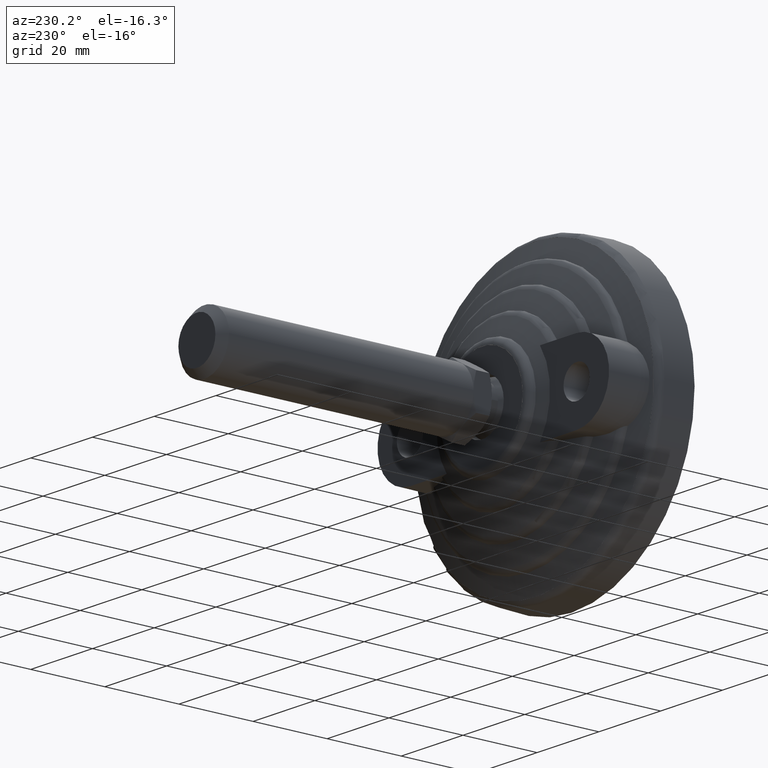
[diagram: clean part render]
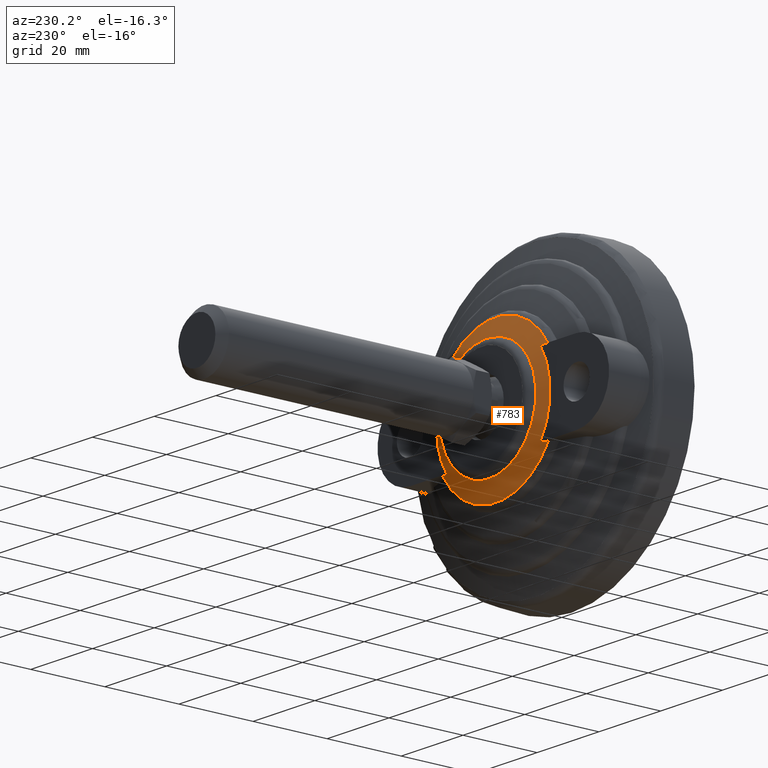
[diagram: same view with one face highlighted and labeled with its STEP entity id]
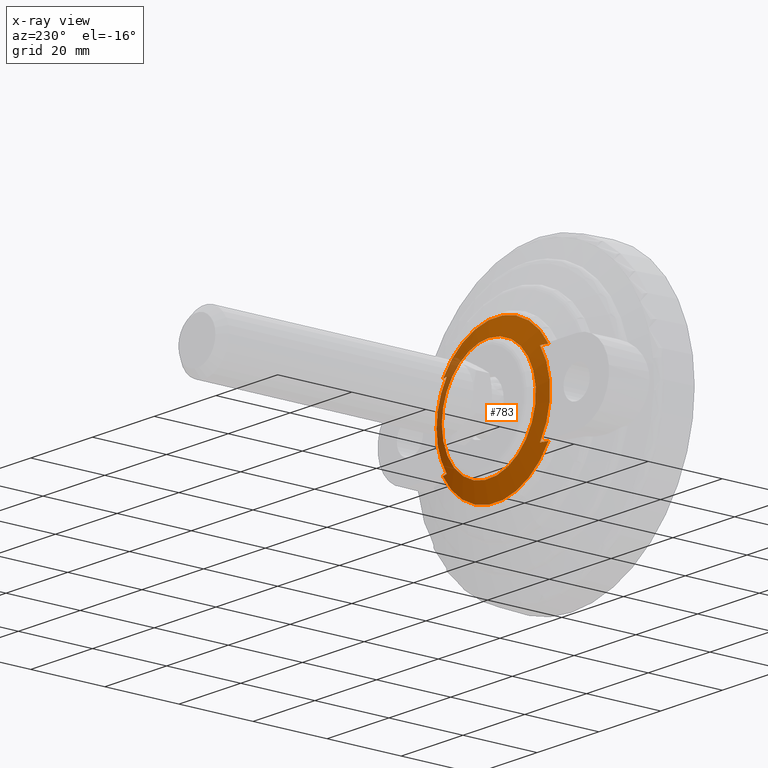
[diagram: x-ray of the same camera — body ghosted, the highlighted face saturated]
A machine part, auxiliary view. The second image highlights one B-rep face of the part: STEP entity #783.
The next image is the same camera in x-ray: the body ghosted, the highlighted face saturated — about 7% of this face is hidden behind the body in this view.
In plain terms, the highlighted conical surface has half-angle 69.278 deg.
Its self-contained STEP definition (entity closure, byte-faithful):
#61=(
BOUNDED_CURVE()
B_SPLINE_CURVE(2,(#1353,#1354,#1355),.UNSPECIFIED.,.F.,.F.)
B_SPLINE_CURVE_WITH_KNOTS((3,3),(0.,2.10575083617313),.UNSPECIFIED.)
CURVE()
GEOMETRIC_REPRESENTATION_ITEM()
RATIONAL_B_SPLINE_CURVE((1.,1.00136433077833,1.))
REPRESENTATION_ITEM('')
);
#62=(
BOUNDED_CURVE()
B_SPLINE_CURVE(2,(#1357,#1358,#1359),.UNSPECIFIED.,.F.,.F.)
B_SPLINE_CURVE_WITH_KNOTS((3,3),(0.,2.10575083617313),.UNSPECIFIED.)
CURVE()
GEOMETRIC_REPRESENTATION_ITEM()
RATIONAL_B_SPLINE_CURVE((1.,1.00136433077833,1.))
REPRESENTATION_ITEM('')
);
#63=(
BOUNDED_CURVE()
B_SPLINE_CURVE(2,(#1362,#1363,#1364),.UNSPECIFIED.,.F.,.F.)
B_SPLINE_CURVE_WITH_KNOTS((3,3),(0.,2.10575083617313),.UNSPECIFIED.)
CURVE()
GEOMETRIC_REPRESENTATION_ITEM()
RATIONAL_B_SPLINE_CURVE((1.,1.00136433077833,1.))
REPRESENTATION_ITEM('')
);
#64=(
BOUNDED_CURVE()
B_SPLINE_CURVE(2,(#1365,#1366,#1367),.UNSPECIFIED.,.F.,.F.)
B_SPLINE_CURVE_WITH_KNOTS((3,3),(0.,2.10575083617313),.UNSPECIFIED.)
CURVE()
GEOMETRIC_REPRESENTATION_ITEM()
RATIONAL_B_SPLINE_CURVE((1.,1.00136433077833,1.))
REPRESENTATION_ITEM('')
);
#125=FACE_OUTER_BOUND('',#171,.T.);
#171=EDGE_LOOP('',(#565,#566,#567,#568,#569,#570,#571,#572,#573,#574,#575,
#576,#577));
#221=LINE('',#1350,#248);
#248=VECTOR('',#1045,17.6517402814312);
#280=CIRCLE('',#898,15.2285588046525);
#281=CIRCLE('',#899,15.2285588046525);
#286=CIRCLE('',#906,20.0749217582098);
#289=CIRCLE('',#910,20.0749217582098);
#290=CIRCLE('',#912,18.3939652558089);
#291=CIRCLE('',#913,18.3939652558089);
#292=CIRCLE('',#914,18.3939652558089);
#329=VERTEX_POINT('',#1279);
#330=VERTEX_POINT('',#1280);
#334=VERTEX_POINT('',#1293);
#335=VERTEX_POINT('',#1294);
#340=VERTEX_POINT('',#1323);
#341=VERTEX_POINT('',#1334);
#342=VERTEX_POINT('',#1347);
#343=VERTEX_POINT('',#1348);
#344=VERTEX_POINT('',#1351);
#345=VERTEX_POINT('',#1356);
#346=VERTEX_POINT('',#1360);
#416=EDGE_CURVE('',#329,#330,#280,.T.);
#417=EDGE_CURVE('',#330,#329,#281,.T.);
#423=EDGE_CURVE('',#334,#335,#286,.T.);
#429=EDGE_CURVE('',#340,#341,#289,.T.);
#431=EDGE_CURVE('',#342,#343,#290,.T.);
#432=EDGE_CURVE('',#343,#329,#221,.T.);
#433=EDGE_CURVE('',#343,#344,#291,.T.);
#434=EDGE_CURVE('',#344,#335,#61,.T.);
#435=EDGE_CURVE('',#334,#345,#62,.T.);
#436=EDGE_CURVE('',#345,#346,#292,.T.);
#437=EDGE_CURVE('',#346,#341,#63,.T.);
#438=EDGE_CURVE('',#340,#342,#64,.T.);
#565=ORIENTED_EDGE('',*,*,#431,.T.);
#566=ORIENTED_EDGE('',*,*,#432,.T.);
#567=ORIENTED_EDGE('',*,*,#416,.T.);
#568=ORIENTED_EDGE('',*,*,#417,.T.);
#569=ORIENTED_EDGE('',*,*,#432,.F.);
#570=ORIENTED_EDGE('',*,*,#433,.T.);
#571=ORIENTED_EDGE('',*,*,#434,.T.);
#572=ORIENTED_EDGE('',*,*,#423,.F.);
#573=ORIENTED_EDGE('',*,*,#435,.T.);
#574=ORIENTED_EDGE('',*,*,#436,.T.);
#575=ORIENTED_EDGE('',*,*,#437,.T.);
#576=ORIENTED_EDGE('',*,*,#429,.F.);
#577=ORIENTED_EDGE('',*,*,#438,.T.);
#767=CONICAL_SURFACE('',#911,17.6517402814312,1.20913440747109);
#783=ADVANCED_FACE('',(#125),#767,.T.);
#898=AXIS2_PLACEMENT_3D('',#1281,#1014,#1015);
#899=AXIS2_PLACEMENT_3D('',#1282,#1016,#1017);
#906=AXIS2_PLACEMENT_3D('',#1295,#1031,#1032);
#910=AXIS2_PLACEMENT_3D('',#1335,#1039,#1040);
#911=AXIS2_PLACEMENT_3D('',#1346,#1041,#1042);
#912=AXIS2_PLACEMENT_3D('',#1349,#1043,#1044);
#913=AXIS2_PLACEMENT_3D('',#1352,#1046,#1047);
#914=AXIS2_PLACEMENT_3D('',#1361,#1048,#1049);
#1014=DIRECTION('center_axis',(0.,-1.,0.));
#1015=DIRECTION('ref_axis',(-1.,0.,0.));
#1016=DIRECTION('center_axis',(0.,-1.,0.));
#1017=DIRECTION('ref_axis',(-1.,0.,0.));
#1031=DIRECTION('center_axis',(0.,-1.,0.));
#1032=DIRECTION('ref_axis',(-1.,0.,0.));
#1039=DIRECTION('center_axis',(0.,-1.,0.));
#1040=DIRECTION('ref_axis',(-1.,0.,0.));
#1041=DIRECTION('center_axis',(0.,-1.,0.));
#1042=DIRECTION('ref_axis',(-1.,0.,0.));
#1043=DIRECTION('center_axis',(0.,1.,0.));
#1044=DIRECTION('ref_axis',(-1.,0.,0.));
#1045=DIRECTION('',(-0.935310080129966,0.353829131089112,-1.14542449584142E-16));
#1046=DIRECTION('center_axis',(0.,1.,0.));
#1047=DIRECTION('ref_axis',(-1.,0.,0.));
#1048=DIRECTION('center_axis',(0.,1.,0.));
#1049=DIRECTION('ref_axis',(-1.,0.,0.));
#1279=CARTESIAN_POINT('',(15.2285588046525,22.1974777541165,1.86489898717352E-15));
#1280=CARTESIAN_POINT('',(-1.86496057957449E-15,22.1974777541165,15.2285588046525));
#1281=CARTESIAN_POINT('Origin',(0.,22.1974777541165,0.));
#1282=CARTESIAN_POINT('Origin',(0.,22.1974777541165,0.));
#1293=CARTESIAN_POINT('',(-17.1100112097639,20.3640917688383,-10.5));
#1294=CARTESIAN_POINT('',(17.1100112097639,20.3640917688383,-10.5));
#1295=CARTESIAN_POINT('Origin',(0.,20.3640917688383,0.));
#1323=CARTESIAN_POINT('',(17.1100112097639,20.3640917688383,10.5));
#1334=CARTESIAN_POINT('',(-17.1100112097639,20.3640917688383,10.5));
#1335=CARTESIAN_POINT('Origin',(0.,20.3640917688383,0.));
#1346=CARTESIAN_POINT('Origin',(0.,21.2807847614774,0.));
#1347=CARTESIAN_POINT('',(15.1025811645528,21.,10.5));
#1348=CARTESIAN_POINT('',(18.3939652558089,21.,2.2526110674154E-15));
#1349=CARTESIAN_POINT('Origin',(0.,21.,0.));
#1350=CARTESIAN_POINT('',(17.6517402814312,21.2807847614774,2.16171472350351E-15));
#1351=CARTESIAN_POINT('',(15.1025811645528,21.,-10.5));
#1352=CARTESIAN_POINT('Origin',(0.,21.,0.));
#1353=CARTESIAN_POINT('Ctrl Pts',(15.1025811645528,21.,-10.5));
#1354=CARTESIAN_POINT('Ctrl Pts',(16.0624373332941,20.7018602053908,-10.5));
#1355=CARTESIAN_POINT('Ctrl Pts',(17.1100112097639,20.3640917688383,-10.5));
#1356=CARTESIAN_POINT('',(-15.1025811645528,21.,-10.5));
#1357=CARTESIAN_POINT('Ctrl Pts',(-17.1100112097639,20.3640917688383,-10.5));
#1358=CARTESIAN_POINT('Ctrl Pts',(-16.0624373332941,20.7018602053908,-10.5));
#1359=CARTESIAN_POINT('Ctrl Pts',(-15.1025811645528,21.,-10.5));
#1360=CARTESIAN_POINT('',(-15.1025811645528,21.,10.5));
#1361=CARTESIAN_POINT('Origin',(0.,21.,0.));
#1362=CARTESIAN_POINT('Ctrl Pts',(-15.1025811645528,21.,10.5));
#1363=CARTESIAN_POINT('Ctrl Pts',(-16.0624373332941,20.7018602053908,10.5));
#1364=CARTESIAN_POINT('Ctrl Pts',(-17.1100112097639,20.3640917688383,10.5));
#1365=CARTESIAN_POINT('Ctrl Pts',(17.1100112097639,20.3640917688383,10.5));
#1366=CARTESIAN_POINT('Ctrl Pts',(16.0624373332941,20.7018602053908,10.5));
#1367=CARTESIAN_POINT('Ctrl Pts',(15.1025811645528,21.,10.5));